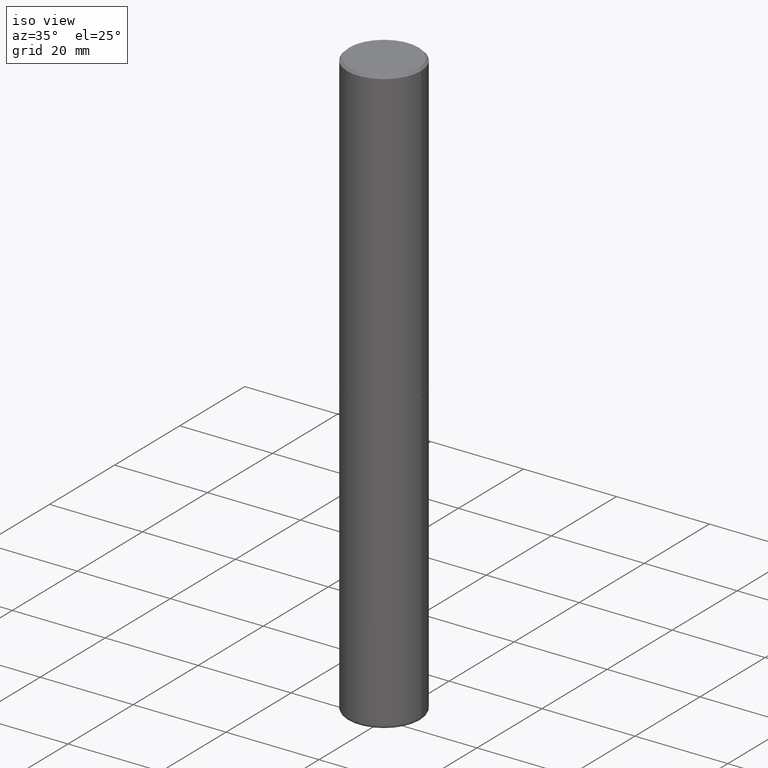
[diagram: clean part render]
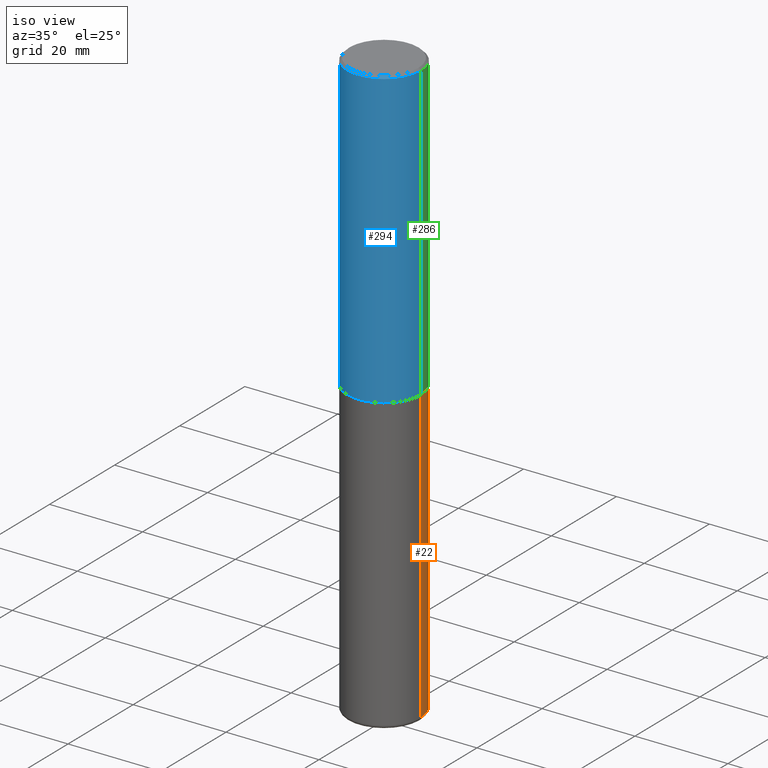
[diagram: same view with three faces highlighted in distinct colors, each labeled with its STEP entity id]
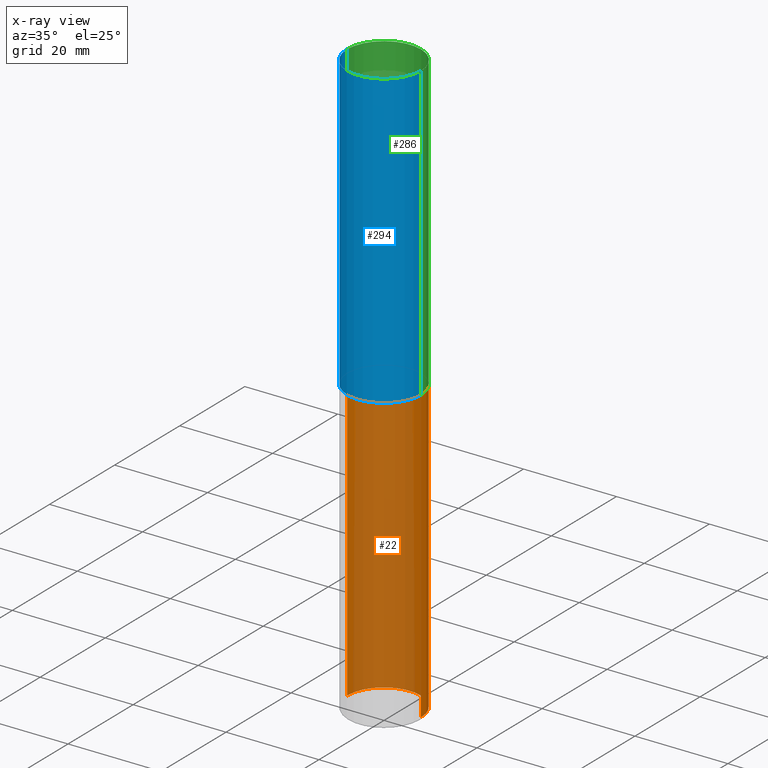
[diagram: x-ray of the same camera — body ghosted, the three highlighted faces saturated]
A machine part, iso view with three faces highlighted in distinct colors.
The next image is the same camera in x-ray (body ghosted, the three faces saturated) — at least one of them is partly hidden behind the body in this view.
Their STEP definitions:

[orange] entity #22 — the highlighted cylindrical surface (partial cylindrical patch) has radius 7.9375 mm, axis along (-0, 0, 1).
#11 = DIRECTION ( 'NONE',  ( -2.445468806185136877E-29, 3.491481338843145188E-15, 1.000000000000000000 ) ) ;
#15 = DIRECTION ( 'NONE',  ( -2.445468806185136597E-29, 3.491481338843145583E-15, 1.000000000000000000 ) ) ;
#22 = ADVANCED_FACE ( 'NONE', ( #378 ), #104, .T. ) ;
#38 = DIRECTION ( 'NONE',  ( 1.000000000000000000, -6.982962677686262766E-15, 0.000000000000000000 ) ) ;
#39 = EDGE_CURVE ( 'NONE', #238, #393, #245, .T. ) ;
#52 = CARTESIAN_POINT ( 'NONE',  ( 0.3124999999999998890, -2.182175836776957558E-15, 1.523805242436229235E-29 ) ) ;
#97 = VERTEX_POINT ( 'NONE', #180 ) ;
#104 = CYLINDRICAL_SURFACE ( 'NONE', #150, 0.3124999999999998890 ) ;
#110 = VECTOR ( 'NONE', #11, 39.37007874015748143 ) ;
#116 = EDGE_LOOP ( 'NONE', ( #162, #423, #265, #200 ) ) ;
#119 = CIRCLE ( 'NONE', #252, 0.3125000000000000000 ) ;
#120 = LINE ( 'NONE', #52, #315 ) ;
#145 = CARTESIAN_POINT ( 'NONE',  ( 1.215397996674012611E-28, -1.735266225405043020E-14, -4.969999999999998863 ) ) ;
#147 = CARTESIAN_POINT ( 'NONE',  ( 0.3124999999999997224, -1.953483809082738382E-14, -4.969999999999998863 ) ) ;
#150 = AXIS2_PLACEMENT_3D ( 'NONE', #246, #412, #241 ) ;
#162 = ORIENTED_EDGE ( 'NONE', *, *, #39, .T. ) ;
#180 = CARTESIAN_POINT ( 'NONE',  ( -0.3125000000000000000, -1.082023675132883449E-14, -2.500000000000000000 ) ) ;
#200 = ORIENTED_EDGE ( 'NONE', *, *, #384, .F. ) ;
#203 = VERTEX_POINT ( 'NONE', #381 ) ;
#224 = CARTESIAN_POINT ( 'NONE',  ( 6.113672015462842613E-29, -8.728703347107864943E-15, -2.500000000000000000 ) ) ;
#238 = VERTEX_POINT ( 'NONE', #147 ) ;
#241 = DIRECTION ( 'NONE',  ( 1.000000000000000000, -6.982962677686266711E-15, 4.876176775795935232E-29 ) ) ;
#245 = CIRCLE ( 'NONE', #336, 0.3124999999999997224 ) ;
#246 = CARTESIAN_POINT ( 'NONE',  ( 0.000000000000000000, 0.000000000000000000, 0.000000000000000000 ) ) ;
#247 = CARTESIAN_POINT ( 'NONE',  ( -0.3124999999999998890, 2.220446049250312292E-15, -1.537167215704657391E-29 ) ) ;
#249 = DIRECTION ( 'NONE',  ( 1.000000000000000000, -6.982962677686265133E-15, 0.000000000000000000 ) ) ;
#252 = AXIS2_PLACEMENT_3D ( 'NONE', #224, #15, #249 ) ;
#265 = ORIENTED_EDGE ( 'NONE', *, *, #301, .F. ) ;
#277 = DIRECTION ( 'NONE',  ( -2.445468806185136597E-29, 3.491481338843145583E-15, 1.000000000000000000 ) ) ;
#301 = EDGE_CURVE ( 'NONE', #203, #97, #119, .T. ) ;
#315 = VECTOR ( 'NONE', #364, 39.37007874015748143 ) ;
#318 = LINE ( 'NONE', #247, #110 ) ;
#324 = EDGE_CURVE ( 'NONE', #393, #97, #318, .T. ) ;
#328 = CARTESIAN_POINT ( 'NONE',  ( -0.3124999999999997224, -1.513221620480011712E-14, -4.969999999999998863 ) ) ;
#336 = AXIS2_PLACEMENT_3D ( 'NONE', #145, #277, #38 ) ;
#364 = DIRECTION ( 'NONE',  ( -2.445468806185136877E-29, 3.491481338843145188E-15, 1.000000000000000000 ) ) ;
#378 = FACE_OUTER_BOUND ( 'NONE', #116, .T. ) ;
#381 = CARTESIAN_POINT ( 'NONE',  ( 0.3125000000000000000, -1.091087918388482329E-14, -2.500000000000000000 ) ) ;
#384 = EDGE_CURVE ( 'NONE', #238, #203, #120, .T. ) ;
#393 = VERTEX_POINT ( 'NONE', #328 ) ;
#412 = DIRECTION ( 'NONE',  ( -2.445468806185136597E-29, 3.491481338843145583E-15, 1.000000000000000000 ) ) ;
#423 = ORIENTED_EDGE ( 'NONE', *, *, #324, .T. ) ;

[blue] entity #294 — the highlighted cylindrical surface (partial cylindrical patch) has radius 7.9375 mm, axis along (-0, 0, 1).
#3 = DIRECTION ( 'NONE',  ( -2.445468806185136877E-29, 3.491481338843145188E-15, 1.000000000000000000 ) ) ;
#4 = DIRECTION ( 'NONE',  ( 1.000000000000000000, -6.982962677686266711E-15, 0.000000000000000000 ) ) ;
#45 = DIRECTION ( 'NONE',  ( -2.445468806185136597E-29, 3.491481338843145583E-15, 1.000000000000000000 ) ) ;
#51 = CYLINDRICAL_SURFACE ( 'NONE', #83, 0.3124999999999998890 ) ;
#56 = CIRCLE ( 'NONE', #388, 0.3125000000000000555 ) ;
#68 = DIRECTION ( 'NONE',  ( -2.445468806185136597E-29, 3.491481338843145583E-15, 1.000000000000000000 ) ) ;
#70 = EDGE_CURVE ( 'NONE', #298, #80, #345, .T. ) ;
#80 = VERTEX_POINT ( 'NONE', #339 ) ;
#82 = LINE ( 'NONE', #424, #126 ) ;
#83 = AXIS2_PLACEMENT_3D ( 'NONE', #417, #45, #350 ) ;
#113 = CARTESIAN_POINT ( 'NONE',  ( 0.3124999999999996669, -2.213735251080464545E-15, -0.02000000000000005940 ) ) ;
#118 = VECTOR ( 'NONE', #3, 39.37007874015748143 ) ;
#125 = EDGE_CURVE ( 'NONE', #80, #365, #225, .T. ) ;
#126 = VECTOR ( 'NONE', #419, 39.37007874015748143 ) ;
#164 = ORIENTED_EDGE ( 'NONE', *, *, #186, .T. ) ;
#176 = CARTESIAN_POINT ( 'NONE',  ( 6.111226546656657010E-29, -8.725211865769021935E-15, -2.499000000000000110 ) ) ;
#181 = EDGE_LOOP ( 'NONE', ( #361, #164, #367, #304 ) ) ;
#186 = EDGE_CURVE ( 'NONE', #298, #263, #56, .T. ) ;
#187 = CARTESIAN_POINT ( 'NONE',  ( -0.3125000000000000555, -2.177074697022625986E-15, -2.499000000000000110 ) ) ;
#208 = DIRECTION ( 'NONE',  ( 1.000000000000000000, -6.982962677686264344E-15, 0.000000000000000000 ) ) ;
#225 = CIRCLE ( 'NONE', #370, 0.3124999999999996669 ) ;
#258 = EDGE_CURVE ( 'NONE', #263, #365, #82, .T. ) ;
#263 = VERTEX_POINT ( 'NONE', #316 ) ;
#271 = CARTESIAN_POINT ( 'NONE',  ( 4.890937612370288047E-31, -6.982962677686311331E-17, -0.02000000000000005940 ) ) ;
#275 = DIRECTION ( 'NONE',  ( -2.445468806185136597E-29, 3.491481338843145583E-15, 1.000000000000000000 ) ) ;
#283 = FACE_OUTER_BOUND ( 'NONE', #181, .T. ) ;
#294 = ADVANCED_FACE ( 'NONE', ( #283 ), #51, .T. ) ;
#298 = VERTEX_POINT ( 'NONE', #187 ) ;
#304 = ORIENTED_EDGE ( 'NONE', *, *, #125, .F. ) ;
#316 = CARTESIAN_POINT ( 'NONE',  ( 0.3125000000000000555, -1.090738770254598028E-14, -2.499000000000000110 ) ) ;
#339 = CARTESIAN_POINT ( 'NONE',  ( -0.3124999999999996669, 2.112346210000092682E-15, -0.02000000000000005940 ) ) ;
#345 = LINE ( 'NONE', #379, #118 ) ;
#350 = DIRECTION ( 'NONE',  ( 1.000000000000000000, -6.982962677686266711E-15, 4.876176775795935232E-29 ) ) ;
#361 = ORIENTED_EDGE ( 'NONE', *, *, #70, .F. ) ;
#365 = VERTEX_POINT ( 'NONE', #113 ) ;
#367 = ORIENTED_EDGE ( 'NONE', *, *, #258, .T. ) ;
#370 = AXIS2_PLACEMENT_3D ( 'NONE', #271, #275, #4 ) ;
#379 = CARTESIAN_POINT ( 'NONE',  ( -0.3124999999999998890, 2.220446049250312292E-15, -1.537167215704657391E-29 ) ) ;
#388 = AXIS2_PLACEMENT_3D ( 'NONE', #176, #68, #208 ) ;
#417 = CARTESIAN_POINT ( 'NONE',  ( 0.000000000000000000, 0.000000000000000000, 0.000000000000000000 ) ) ;
#419 = DIRECTION ( 'NONE',  ( -2.445468806185136877E-29, 3.491481338843145188E-15, 1.000000000000000000 ) ) ;
#424 = CARTESIAN_POINT ( 'NONE',  ( 0.3124999999999998890, -2.182175836776957558E-15, 1.523805242436229235E-29 ) ) ;

[green] entity #286 — the highlighted cylindrical surface (partial cylindrical patch) has radius 7.9375 mm, axis along (-0, 0, 1).
#3 = DIRECTION ( 'NONE',  ( -2.445468806185136877E-29, 3.491481338843145188E-15, 1.000000000000000000 ) ) ;
#9 = CIRCLE ( 'NONE', #329, 0.3125000000000000555 ) ;
#25 = ORIENTED_EDGE ( 'NONE', *, *, #395, .T. ) ;
#35 = ORIENTED_EDGE ( 'NONE', *, *, #210, .F. ) ;
#59 = DIRECTION ( 'NONE',  ( 1.000000000000000000, -6.982962677686264344E-15, 0.000000000000000000 ) ) ;
#65 = AXIS2_PLACEMENT_3D ( 'NONE', #351, #217, #317 ) ;
#70 = EDGE_CURVE ( 'NONE', #298, #80, #345, .T. ) ;
#80 = VERTEX_POINT ( 'NONE', #339 ) ;
#82 = LINE ( 'NONE', #424, #126 ) ;
#89 = AXIS2_PLACEMENT_3D ( 'NONE', #223, #385, #382 ) ;
#108 = CYLINDRICAL_SURFACE ( 'NONE', #89, 0.3124999999999998890 ) ;
#113 = CARTESIAN_POINT ( 'NONE',  ( 0.3124999999999996669, -2.213735251080464545E-15, -0.02000000000000005940 ) ) ;
#118 = VECTOR ( 'NONE', #3, 39.37007874015748143 ) ;
#123 = ORIENTED_EDGE ( 'NONE', *, *, #70, .T. ) ;
#126 = VECTOR ( 'NONE', #419, 39.37007874015748143 ) ;
#187 = CARTESIAN_POINT ( 'NONE',  ( -0.3125000000000000555, -2.177074697022625986E-15, -2.499000000000000110 ) ) ;
#198 = EDGE_LOOP ( 'NONE', ( #25, #123, #35, #259 ) ) ;
#210 = EDGE_CURVE ( 'NONE', #365, #80, #407, .T. ) ;
#217 = DIRECTION ( 'NONE',  ( -2.445468806185136597E-29, 3.491481338843145583E-15, 1.000000000000000000 ) ) ;
#223 = CARTESIAN_POINT ( 'NONE',  ( 0.000000000000000000, 0.000000000000000000, 0.000000000000000000 ) ) ;
#251 = FACE_OUTER_BOUND ( 'NONE', #198, .T. ) ;
#258 = EDGE_CURVE ( 'NONE', #263, #365, #82, .T. ) ;
#259 = ORIENTED_EDGE ( 'NONE', *, *, #258, .F. ) ;
#263 = VERTEX_POINT ( 'NONE', #316 ) ;
#286 = ADVANCED_FACE ( 'NONE', ( #251 ), #108, .T. ) ;
#291 = CARTESIAN_POINT ( 'NONE',  ( 6.111226546656657010E-29, -8.725211865769021935E-15, -2.499000000000000110 ) ) ;
#298 = VERTEX_POINT ( 'NONE', #187 ) ;
#316 = CARTESIAN_POINT ( 'NONE',  ( 0.3125000000000000555, -1.090738770254598028E-14, -2.499000000000000110 ) ) ;
#317 = DIRECTION ( 'NONE',  ( 1.000000000000000000, -6.982962677686266711E-15, 0.000000000000000000 ) ) ;
#323 = DIRECTION ( 'NONE',  ( -2.445468806185136597E-29, 3.491481338843145583E-15, 1.000000000000000000 ) ) ;
#329 = AXIS2_PLACEMENT_3D ( 'NONE', #291, #323, #59 ) ;
#339 = CARTESIAN_POINT ( 'NONE',  ( -0.3124999999999996669, 2.112346210000092682E-15, -0.02000000000000005940 ) ) ;
#345 = LINE ( 'NONE', #379, #118 ) ;
#351 = CARTESIAN_POINT ( 'NONE',  ( 4.890937612370288047E-31, -6.982962677686311331E-17, -0.02000000000000005940 ) ) ;
#365 = VERTEX_POINT ( 'NONE', #113 ) ;
#379 = CARTESIAN_POINT ( 'NONE',  ( -0.3124999999999998890, 2.220446049250312292E-15, -1.537167215704657391E-29 ) ) ;
#382 = DIRECTION ( 'NONE',  ( 1.000000000000000000, -6.982962677686266711E-15, 4.876176775795935232E-29 ) ) ;
#385 = DIRECTION ( 'NONE',  ( -2.445468806185136597E-29, 3.491481338843145583E-15, 1.000000000000000000 ) ) ;
#395 = EDGE_CURVE ( 'NONE', #263, #298, #9, .T. ) ;
#407 = CIRCLE ( 'NONE', #65, 0.3124999999999996669 ) ;
#419 = DIRECTION ( 'NONE',  ( -2.445468806185136877E-29, 3.491481338843145188E-15, 1.000000000000000000 ) ) ;
#424 = CARTESIAN_POINT ( 'NONE',  ( 0.3124999999999998890, -2.182175836776957558E-15, 1.523805242436229235E-29 ) ) ;